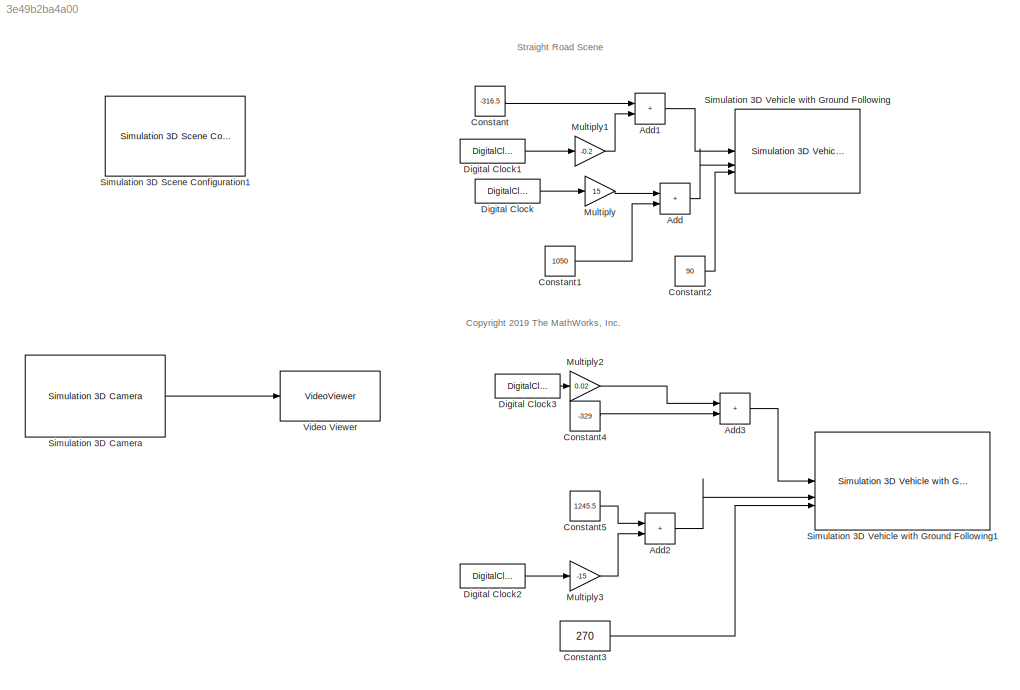
MODEL slx_3e49b2ba4a00
KIND model
CONFIG AbsTol = auto
CONFIG EnableMultiTasking = off
CONFIG FixedStep = auto
CONFIG MaxStep = auto
CONFIG MinStep = auto
CONFIG RelTol = 1e-3
CONFIG SampleTimeConstraint = Unconstrained
CONFIG SolverName = VariableStepAuto
CONFIG StartTime = 0.0
CONFIG StopTime = 10.0
BLOCK [Sum] Add
  IconShape = rectangular
BLOCK [Sum] Add1
  IconShape = rectangular
BLOCK [Sum] Add2
  IconShape = rectangular
BLOCK [Sum] Add3
  IconShape = rectangular
BLOCK [Constant] Constant
  Value = -316.5
BLOCK [Constant] Constant1
  Value = 1050
BLOCK [Constant] Constant2
  Value = 90
BLOCK [Constant] Constant3
  Value = 270
BLOCK [Constant] Constant4
  Value = -329
BLOCK [Constant] Constant5
  Value = 1245.5
BLOCK [DigitalClock] Digital Clock
  SampleTime = 0.01
BLOCK [DigitalClock] Digital Clock1
  SampleTime = 0.01
BLOCK [DigitalClock] Digital Clock2
  SampleTime = 0.02
BLOCK [DigitalClock] Digital Clock3
  SampleTime = 0.02
BLOCK [Gain] Multiply
  Gain = 15
BLOCK [Gain] Multiply1
  Gain = -0.2
BLOCK [Gain] Multiply2
  Gain = 0.02
BLOCK [Gain] Multiply3
  Gain = -15
BLOCK [Reference] Simulation 3D Camera  REF=sim3dcameralib/Simulation 3D Camera
  SourceBlock = sim3dcameralib/Simulation 3D Camera
  SourceType = Simulation 3D Camera
BLOCK [Reference] Simulation 3D Scene Configuration1  REF=sim3dlib/Simulation 3D Scene Configuration
  Priority = 0
  SourceBlock = sim3dlib/Simulation 3D Scene Configuration
  SourceType = Simulation 3D Scene Configuration
BLOCK [Reference] Simulation 3D Vehicle with Ground Following  REF=sim3dautolib/Simulation 3D Vehicle with Ground Following
  Priority = -1
  SourceBlock = sim3dautolib/Simulation 3D Vehicle with Ground Following
  SourceType = Simulation 3D Vehicle with Ground Following
BLOCK [Reference] Simulation 3D Vehicle with Ground Following1  REF=sim3dautolib/Simulation 3D Vehicle with Ground Following
  LibrarySourceBlock = drivingsim3d/Simulation 3D Vehicle with Ground Following
  Priority = -1
  SourceBlock = sim3dautolib/Simulation 3D Vehicle with Ground Following
  SourceType = Simulation 3D Vehicle with Ground Following
BLOCK [VideoViewer] Video Viewer
  FigPos = [61 1240 1920 937]
  ScopeSpecificationString = vipscopes.VideoViewerScopeCfg('CurrentConfiguration', extmgr.ConfigurationSet(extmgr.Configuration('Core','General UI',true),extmgr.Configuration('Core','Source UI',true),extmgr.Configuration('Sources','WiredSimulink',true),extmgr.Configuration('Visuals','Video',true),extmgr.Configuration('Tools','Image Navigation Tools',true),extmgr.Configuration('Tools','Image Tool',true),extmgr.Configuration('T...<+102ch>
ANNOTATION (root): <copyright redacted>
ANNOTATION (root): Straight Road Scene
LINE Add1:1 -> Simulation 3D Vehicle with Ground Following:1
LINE Add2:1 -> Simulation 3D Vehicle with Ground Following1:2
LINE Add3:1 -> Simulation 3D Vehicle with Ground Following1:1
LINE Add:1 -> Simulation 3D Vehicle with Ground Following:2
LINE Constant1:1 -> Add:2
LINE Constant2:1 -> Simulation 3D Vehicle with Ground Following:3
LINE Constant3:1 -> Simulation 3D Vehicle with Ground Following1:3
LINE Constant4:1 -> Add3:2
LINE Constant5:1 -> Add2:1
LINE Constant:1 -> Add1:1
LINE Digital Clock1:1 -> Multiply1:1
LINE Digital Clock2:1 -> Multiply3:1
LINE Digital Clock3:1 -> Multiply2:1
LINE Digital Clock:1 -> Multiply:1
LINE Multiply1:1 -> Add1:2
LINE Multiply2:1 -> Add3:1
LINE Multiply3:1 -> Add2:2
LINE Multiply:1 -> Add:1
LINE Simulation 3D Camera:1 -> Video Viewer:1
